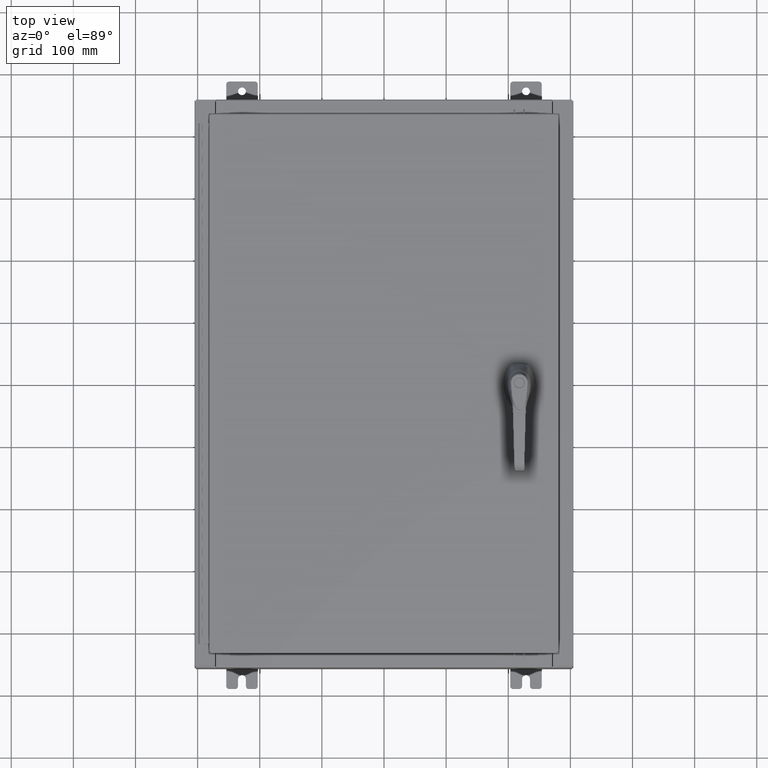
[diagram: clean part render]
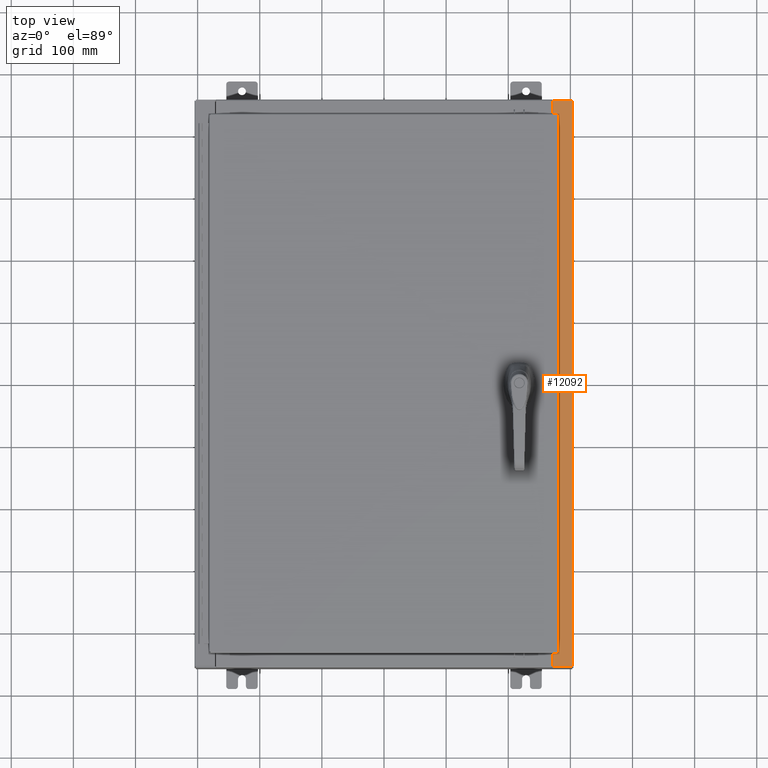
[diagram: same view with one face highlighted and labeled with its STEP entity id]
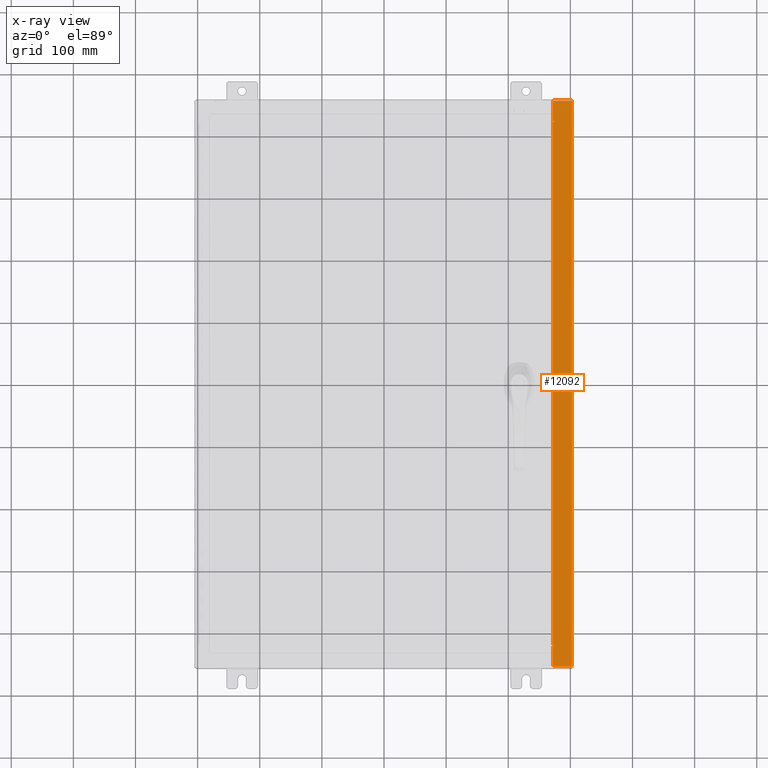
[diagram: x-ray of the same camera — body ghosted, the highlighted face saturated]
A machine part, top view. The second image highlights one B-rep face of the part: STEP entity #12092.
The next image is the same camera in x-ray: the body ghosted, the highlighted face saturated — about 0% of this face is hidden behind the body in this view.
In plain terms, the highlighted planar face has unit normal (-0, 0, -1).
Its self-contained STEP definition (entity closure, byte-faithful):
#406 = ORIENTED_EDGE ( 'NONE', *, *, #70141, .T. ) ;
#3847 = CARTESIAN_POINT ( 'NONE',  ( 10.75005000000002100, 16.61242500000000200, 5.925300000000011600 ) ) ;
#3949 = EDGE_CURVE ( 'NONE', #57658, #117165, #54667, .T. ) ;
#4114 = CARTESIAN_POINT ( 'NONE',  ( 10.69970000000002100, 16.63110000000000000, 5.925300000000009800 ) ) ;
#4126 = CARTESIAN_POINT ( 'NONE',  ( 4.252457061909019600E-014, 0.0000000000000000000, 5.925300000000087100 ) ) ;
#4723 = EDGE_CURVE ( 'NONE', #67167, #57658, #81574, .T. ) ;
#4790 = ORIENTED_EDGE ( 'NONE', *, *, #123285, .F. ) ;
#6069 = VECTOR ( 'NONE', #65998, 39.37007874015748100 ) ;
#7311 = AXIS2_PLACEMENT_3D ( 'NONE', #4126, #13835, #80395 ) ;
#8890 = CARTESIAN_POINT ( 'NONE',  ( 4.252457061909019600E-014, 17.92529999999999600, 5.925300000000087100 ) ) ;
#10026 = ORIENTED_EDGE ( 'NONE', *, *, #99494, .T. ) ;
#12092 = ADVANCED_FACE ( 'NONE', ( #71695 ), #61276, .F. ) ;
#12099 = VECTOR ( 'NONE', #70976, 39.37007874015748100 ) ;
#13835 = DIRECTION ( 'NONE',  ( -7.132762385546384700E-015, 0.0000000000000000000, -1.000000000000000000 ) ) ;
#15326 = CARTESIAN_POINT ( 'NONE',  ( 10.75005000000002100, 16.59375000000000000, 5.925300000000009800 ) ) ;
#16505 = VERTEX_POINT ( 'NONE', #109199 ) ;
#18549 = CARTESIAN_POINT ( 'NONE',  ( 11.91230000000002000, 17.92530000000000000, 5.925300000000001800 ) ) ;
#18869 = DIRECTION ( 'NONE',  ( -1.000000000000000000, 0.0000000000000000000, 0.0000000000000000000 ) ) ;
#19076 = VERTEX_POINT ( 'NONE', #18549 ) ;
#19094 = DIRECTION ( 'NONE',  ( 1.000000000000000000, -1.783190596386596200E-015, -7.132762385546384700E-015 ) ) ;
#20170 = VECTOR ( 'NONE', #113581, 39.37007874015748100 ) ;
#20575 = ORIENTED_EDGE ( 'NONE', *, *, #4723, .F. ) ;
#22837 = LINE ( 'NONE', #84626, #98551 ) ;
#26295 = CIRCLE ( 'NONE', #109120, 0.01867499999999949400 ) ;
#26300 = LINE ( 'NONE', #48116, #96057 ) ;
#28329 = CARTESIAN_POINT ( 'NONE',  ( 1.056034422168157600E-014, -17.92529999999998200, 5.925300000000087100 ) ) ;
#31937 = DIRECTION ( 'NONE',  ( 0.0000000000000000000, -1.000000000000000000, 0.0000000000000000000 ) ) ;
#33868 = DIRECTION ( 'NONE',  ( 7.132762385546384700E-015, 0.0000000000000000000, 1.000000000000000000 ) ) ;
#34923 = CARTESIAN_POINT ( 'NONE',  ( 10.71270000000002100, 16.59375000000000000, 5.925300000000011600 ) ) ;
#34968 = CARTESIAN_POINT ( 'NONE',  ( 10.75005000000002100, -16.63110000000000000, 5.925300000000009800 ) ) ;
#35023 = VECTOR ( 'NONE', #19094, 39.37007874015748100 ) ;
#35047 = CARTESIAN_POINT ( 'NONE',  ( 10.71270000000002100, -16.59375000000000000, 5.925300000000011600 ) ) ;
#36315 = CARTESIAN_POINT ( 'NONE',  ( 10.69970000000002100, -16.63110000000000400, 5.925300000000009800 ) ) ;
#39950 = VERTEX_POINT ( 'NONE', #66634 ) ;
#40785 = CARTESIAN_POINT ( 'NONE',  ( 11.91230000000002000, -17.92530000000000000, 5.925300000000001800 ) ) ;
#41474 = CARTESIAN_POINT ( 'NONE',  ( 10.69970000000002100, 0.0000000000000000000, 5.925300000000009800 ) ) ;
#41831 = VERTEX_POINT ( 'NONE', #36315 ) ;
#43018 = EDGE_CURVE ( 'NONE', #39950, #16505, #71084, .T. ) ;
#44457 = EDGE_CURVE ( 'NONE', #122345, #67167, #26300, .T. ) ;
#45274 = VERTEX_POINT ( 'NONE', #40785 ) ;
#45470 = LINE ( 'NONE', #66011, #20170 ) ;
#46046 = DIRECTION ( 'NONE',  ( 1.000000000000000000, 0.0000000000000000000, 0.0000000000000000000 ) ) ;
#48116 = CARTESIAN_POINT ( 'NONE',  ( 10.71270000000002100, 16.59375000000000000, 5.925300000000011600 ) ) ;
#54197 = EDGE_CURVE ( 'NONE', #87417, #45274, #60190, .T. ) ;
#54667 = LINE ( 'NONE', #82743, #57705 ) ;
#55279 = EDGE_CURVE ( 'NONE', #41831, #87417, #120836, .T. ) ;
#57060 = ORIENTED_EDGE ( 'NONE', *, *, #44457, .F. ) ;
#57658 = VERTEX_POINT ( 'NONE', #118038 ) ;
#57705 = VECTOR ( 'NONE', #84414, 39.37007874015748100 ) ;
#59760 = LINE ( 'NONE', #8890, #6069 ) ;
#60190 = LINE ( 'NONE', #28329, #35023 ) ;
#61276 = PLANE ( 'NONE',  #7311 ) ;
#62043 = VERTEX_POINT ( 'NONE', #34968 ) ;
#62601 = ORIENTED_EDGE ( 'NONE', *, *, #88140, .F. ) ;
#65381 = VECTOR ( 'NONE', #91865, 39.37007874015748100 ) ;
#65700 = CARTESIAN_POINT ( 'NONE',  ( 10.69970000000002100, 17.92530000000000000, 5.925300000000009800 ) ) ;
#65998 = DIRECTION ( 'NONE',  ( -1.000000000000000000, 0.0000000000000000000, 7.132762385546384700E-015 ) ) ;
#66011 = CARTESIAN_POINT ( 'NONE',  ( 10.69970000000002100, -16.63110000000000400, 5.925300000000009800 ) ) ;
#66634 = CARTESIAN_POINT ( 'NONE',  ( 10.75005000000002100, -16.59375000000000000, 5.925300000000009800 ) ) ;
#66680 = LINE ( 'NONE', #35047, #65381 ) ;
#66981 = CARTESIAN_POINT ( 'NONE',  ( 10.69970000000002100, -17.92530000000000000, 5.925300000000009800 ) ) ;
#67167 = VERTEX_POINT ( 'NONE', #15326 ) ;
#68130 = VECTOR ( 'NONE', #18869, 39.37007874015748100 ) ;
#68341 = ORIENTED_EDGE ( 'NONE', *, *, #55279, .T. ) ;
#68634 = EDGE_CURVE ( 'NONE', #19076, #45274, #22837, .T. ) ;
#70141 = EDGE_CURVE ( 'NONE', #19076, #114483, #59760, .T. ) ;
#70976 = DIRECTION ( 'NONE',  ( 0.0000000000000000000, -1.000000000000000000, 0.0000000000000000000 ) ) ;
#71084 = LINE ( 'NONE', #85375, #68130 ) ;
#71695 = FACE_OUTER_BOUND ( 'NONE', #99892, .T. ) ;
#72310 = ORIENTED_EDGE ( 'NONE', *, *, #3949, .F. ) ;
#76376 = DIRECTION ( 'NONE',  ( 1.000000000000000000, 0.0000000000000000000, 0.0000000000000000000 ) ) ;
#76657 = ORIENTED_EDGE ( 'NONE', *, *, #120142, .F. ) ;
#80395 = DIRECTION ( 'NONE',  ( -1.000000000000000000, 0.0000000000000000000, 7.132762385546384700E-015 ) ) ;
#81574 = CIRCLE ( 'NONE', #87384, 0.01867499999999949400 ) ;
#82743 = CARTESIAN_POINT ( 'NONE',  ( 10.75005000000002100, 16.63110000000000000, 5.925300000000011600 ) ) ;
#84414 = DIRECTION ( 'NONE',  ( -1.000000000000000000, 4.340572780400098900E-014, -2.170286390200049500E-014 ) ) ;
#84626 = CARTESIAN_POINT ( 'NONE',  ( 11.91230000000002000, -17.92530000000000000, 5.925300000000001800 ) ) ;
#85375 = CARTESIAN_POINT ( 'NONE',  ( 10.75005000000002100, -16.59375000000000000, 5.925300000000011600 ) ) ;
#87384 = AXIS2_PLACEMENT_3D ( 'NONE', #3847, #93169, #46046 ) ;
#87417 = VERTEX_POINT ( 'NONE', #66981 ) ;
#88140 = EDGE_CURVE ( 'NONE', #41831, #62043, #45470, .T. ) ;
#89259 = CARTESIAN_POINT ( 'NONE',  ( 10.69970000000002100, 0.0000000000000000000, 5.925300000000009800 ) ) ;
#90713 = CARTESIAN_POINT ( 'NONE',  ( 10.75005000000002100, -16.61242500000000200, 5.925300000000011600 ) ) ;
#91865 = DIRECTION ( 'NONE',  ( -0.0000000000000000000, 1.000000000000000000, -0.0000000000000000000 ) ) ;
#93169 = DIRECTION ( 'NONE',  ( 7.132762385546384700E-015, 0.0000000000000000000, 1.000000000000000000 ) ) ;
#96057 = VECTOR ( 'NONE', #76376, 39.37007874015748100 ) ;
#98551 = VECTOR ( 'NONE', #103172, 39.37007874015748100 ) ;
#99494 = EDGE_CURVE ( 'NONE', #114483, #117165, #113103, .T. ) ;
#99892 = EDGE_LOOP ( 'NONE', ( #62601, #68341, #100836, #122899, #406, #10026, #72310, #20575, #57060, #76657, #102907, #4790 ) ) ;
#100127 = DIRECTION ( 'NONE',  ( 1.000000000000000000, 0.0000000000000000000, 0.0000000000000000000 ) ) ;
#100836 = ORIENTED_EDGE ( 'NONE', *, *, #54197, .T. ) ;
#102907 = ORIENTED_EDGE ( 'NONE', *, *, #43018, .F. ) ;
#103172 = DIRECTION ( 'NONE',  ( -0.0000000000000000000, -1.000000000000000000, -0.0000000000000000000 ) ) ;
#109120 = AXIS2_PLACEMENT_3D ( 'NONE', #90713, #33868, #100127 ) ;
#109199 = CARTESIAN_POINT ( 'NONE',  ( 10.71270000000002100, -16.59375000000000000, 5.925300000000011600 ) ) ;
#113103 = LINE ( 'NONE', #89259, #12099 ) ;
#113581 = DIRECTION ( 'NONE',  ( 1.000000000000000000, 4.340572780400098900E-014, 2.170286390200049500E-014 ) ) ;
#114483 = VERTEX_POINT ( 'NONE', #65700 ) ;
#117165 = VERTEX_POINT ( 'NONE', #4114 ) ;
#117848 = VECTOR ( 'NONE', #31937, 39.37007874015748100 ) ;
#118038 = CARTESIAN_POINT ( 'NONE',  ( 10.75005000000002100, 16.63110000000000000, 5.925300000000009800 ) ) ;
#120142 = EDGE_CURVE ( 'NONE', #16505, #122345, #66680, .T. ) ;
#120836 = LINE ( 'NONE', #41474, #117848 ) ;
#122345 = VERTEX_POINT ( 'NONE', #34923 ) ;
#122899 = ORIENTED_EDGE ( 'NONE', *, *, #68634, .F. ) ;
#123285 = EDGE_CURVE ( 'NONE', #62043, #39950, #26295, .T. ) ;